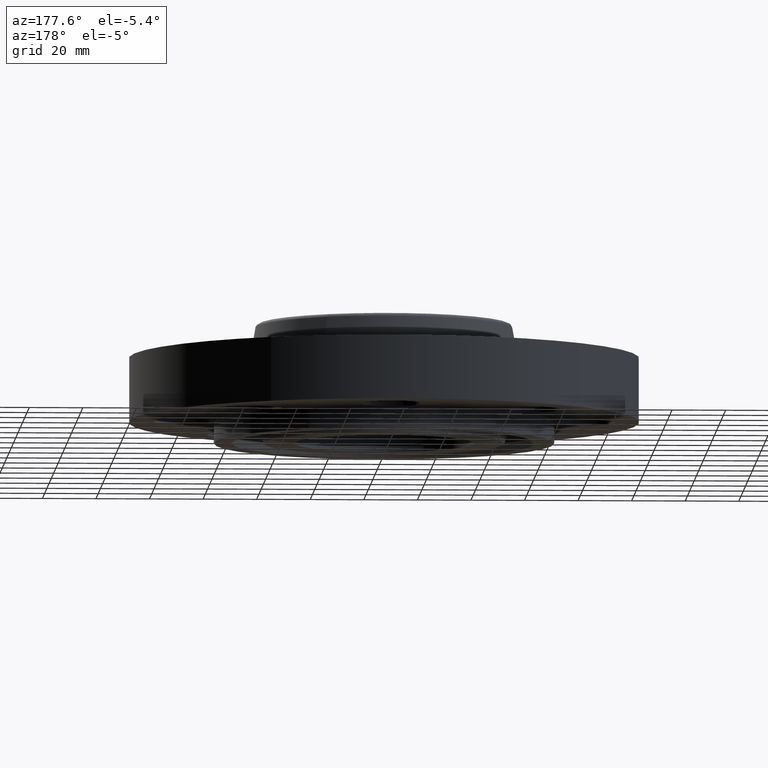
[diagram: clean part render]
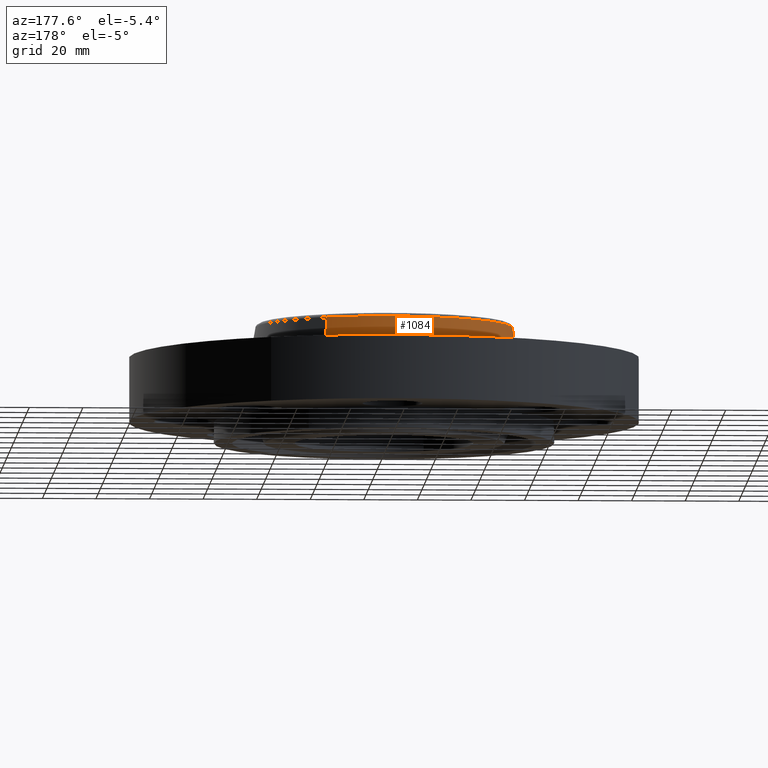
[diagram: same view with one face highlighted and labeled with its STEP entity id]
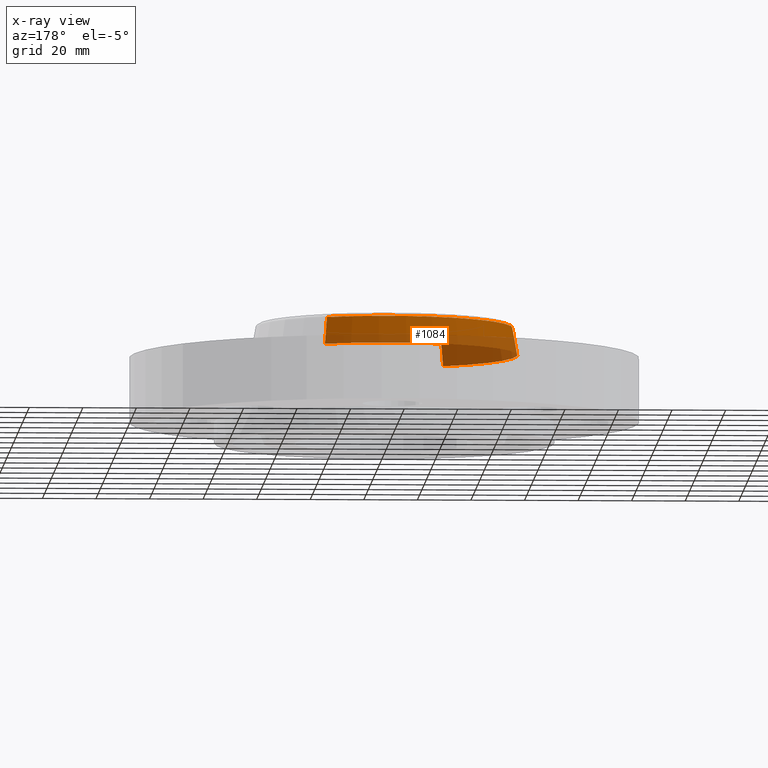
[diagram: x-ray of the same camera — body ghosted, the highlighted face saturated]
A machine part, auxiliary view. The second image highlights one B-rep face of the part: STEP entity #1084.
The next image is the same camera in x-ray: the body ghosted, the highlighted face saturated — about 47% of this face is hidden behind the body in this view.
In plain terms, the highlighted conical surface has half-angle 10 deg.
Its self-contained STEP definition (entity closure, byte-faithful):
#989=AXIS2_PLACEMENT_3D('Circle Axis2P3D',#987,#988,$) ;
#1045=AXIS2_PLACEMENT_3D('Cone Axis2P3D',#1042,#1043,#1044) ;
#1075=AXIS2_PLACEMENT_3D('Circle Axis2P3D',#1073,#1074,$) ;
#960=CARTESIAN_POINT('Vertex',(0.940276939367,1.72116539252,0.989581109344)) ;
#967=CARTESIAN_POINT('Vertex',(-0.940276939367,-1.72116539252,0.989581109344)) ;
#987=CARTESIAN_POINT('Axis2P3D Location',(0.,0.,0.989581109344)) ;
#1042=CARTESIAN_POINT('Axis2P3D Location',(0.,0.,1.39041889067)) ;
#1047=CARTESIAN_POINT('Line Origine',(0.92333439663,1.69015227607,1.19)) ;
#1051=CARTESIAN_POINT('Vertex',(0.906391853893,1.65913915961,1.39041889067)) ;
#1058=CARTESIAN_POINT('Vertex',(-0.906391853893,-1.65913915961,1.39041889067)) ;
#1061=CARTESIAN_POINT('Line Origine',(-0.92333439663,-1.69015227607,1.19)) ;
#1073=CARTESIAN_POINT('Axis2P3D Location',(0.,0.,1.39041889067)) ;
#988=DIRECTION('Axis2P3D Direction',(0.,0.,-0.0393700787402)) ;
#1043=DIRECTION('Axis2P3D Direction',(0.,0.,-0.0393700787402)) ;
#1044=DIRECTION('Axis2P3D XDirection',(-0.0188750212049,-0.0345504945626,0.)) ;
#1048=DIRECTION('Vector Direction',(0.00327761303565,0.00599963041829,-0.03877195878)) ;
#1062=DIRECTION('Vector Direction',(-0.00327761303565,-0.00599963041829,-0.03877195878)) ;
#1074=DIRECTION('Axis2P3D Direction',(0.,0.,-0.0393700787402)) ;
#1049=VECTOR('Line Direction',#1048,0.0393700787402) ;
#1063=VECTOR('Line Direction',#1062,0.0393700787402) ;
#1079=ORIENTED_EDGE('',*,*,#991,.F.) ;
#1080=ORIENTED_EDGE('',*,*,#1065,.T.) ;
#1081=ORIENTED_EDGE('',*,*,#1077,.T.) ;
#1082=ORIENTED_EDGE('',*,*,#1053,.F.) ;
#1084=ADVANCED_FACE('PartBody',(#1083),#1046,.T.) ;
#990=CIRCLE('generated circle',#989,1.9612575127) ;
#1076=CIRCLE('generated circle',#1075,1.89057899696) ;
#1046=CONICAL_SURFACE('Cone',#1045,1.89057899696,0.174532925199) ;
#991=EDGE_CURVE('',#968,#961,#990,.T.) ;
#1053=EDGE_CURVE('',#961,#1052,#1050,.F.) ;
#1065=EDGE_CURVE('',#968,#1059,#1064,.F.) ;
#1077=EDGE_CURVE('',#1059,#1052,#1076,.T.) ;
#1078=EDGE_LOOP('',(#1079,#1080,#1081,#1082)) ;
#1083=FACE_OUTER_BOUND('',#1078,.T.) ;
#1050=LINE('Line',#1047,#1049) ;
#1064=LINE('Line',#1061,#1063) ;
#961=VERTEX_POINT('',#960) ;
#968=VERTEX_POINT('',#967) ;
#1052=VERTEX_POINT('',#1051) ;
#1059=VERTEX_POINT('',#1058) ;